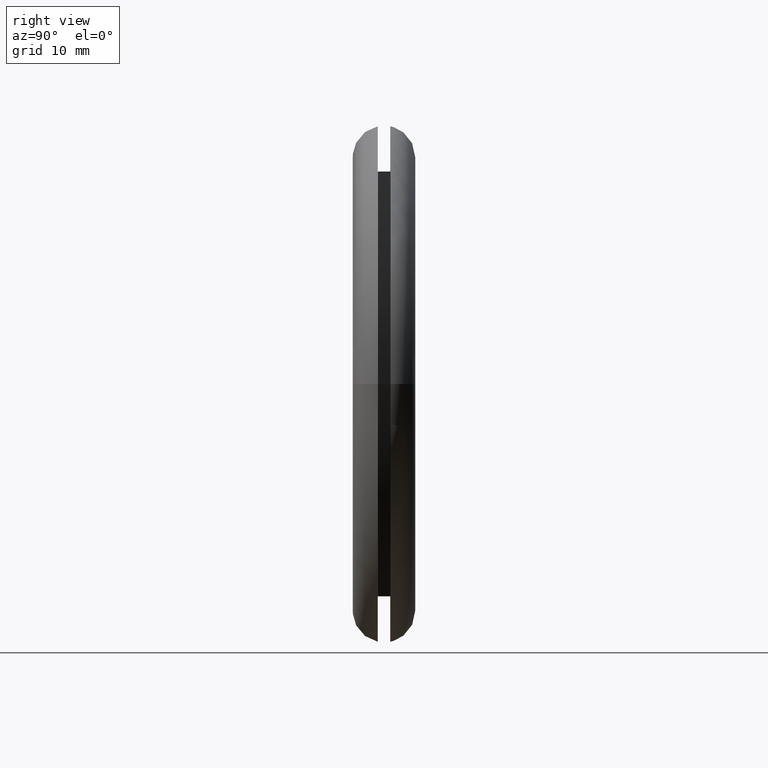
[diagram: clean part render]
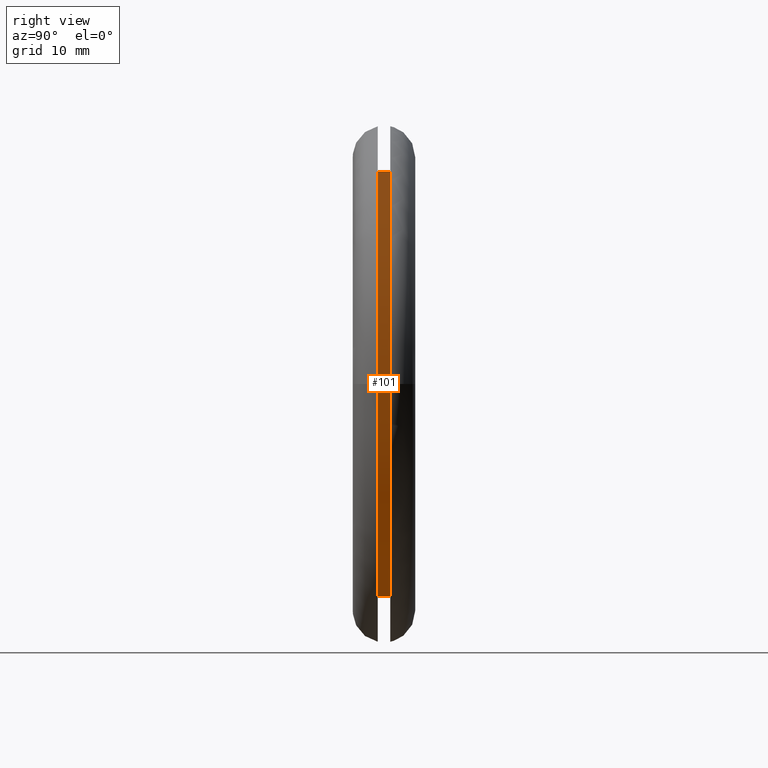
[diagram: same view with one face highlighted and labeled with its STEP entity id]
A machine part, right view. The second image highlights one B-rep face of the part: STEP entity #101.
In plain terms, the highlighted cylindrical surface (bore or boss wall) has radius 34 mm, axis along (0, -1, 0).
Its self-contained STEP definition (entity closure, byte-faithful):
#25=FACE_BOUND('',#47,.T.);
#34=FACE_OUTER_BOUND('',#46,.T.);
#46=EDGE_LOOP('',(#86));
#47=EDGE_LOOP('',(#87));
#58=CIRCLE('',#116,34.);
#59=CIRCLE('',#118,34.);
#66=VERTEX_POINT('',#174);
#67=VERTEX_POINT('',#177);
#74=EDGE_CURVE('',#66,#66,#58,.T.);
#75=EDGE_CURVE('',#67,#67,#59,.T.);
#86=ORIENTED_EDGE('',*,*,#74,.T.);
#87=ORIENTED_EDGE('',*,*,#75,.F.);
#95=CYLINDRICAL_SURFACE('',#117,34.);
#101=ADVANCED_FACE('',(#34,#25),#95,.T.);
#116=AXIS2_PLACEMENT_3D('',#175,#144,#145);
#117=AXIS2_PLACEMENT_3D('',#176,#146,#147);
#118=AXIS2_PLACEMENT_3D('',#178,#148,#149);
#144=DIRECTION('center_axis',(0.,-1.,0.));
#145=DIRECTION('ref_axis',(1.,0.,0.));
#146=DIRECTION('center_axis',(0.,-1.,0.));
#147=DIRECTION('ref_axis',(1.,0.,0.));
#148=DIRECTION('center_axis',(0.,-1.,0.));
#149=DIRECTION('ref_axis',(1.,0.,0.));
#174=CARTESIAN_POINT('',(34.,6.,0.));
#175=CARTESIAN_POINT('Origin',(0.,6.,0.));
#176=CARTESIAN_POINT('Origin',(0.,5.,0.));
#177=CARTESIAN_POINT('',(34.,4.,0.));
#178=CARTESIAN_POINT('Origin',(0.,4.,0.));